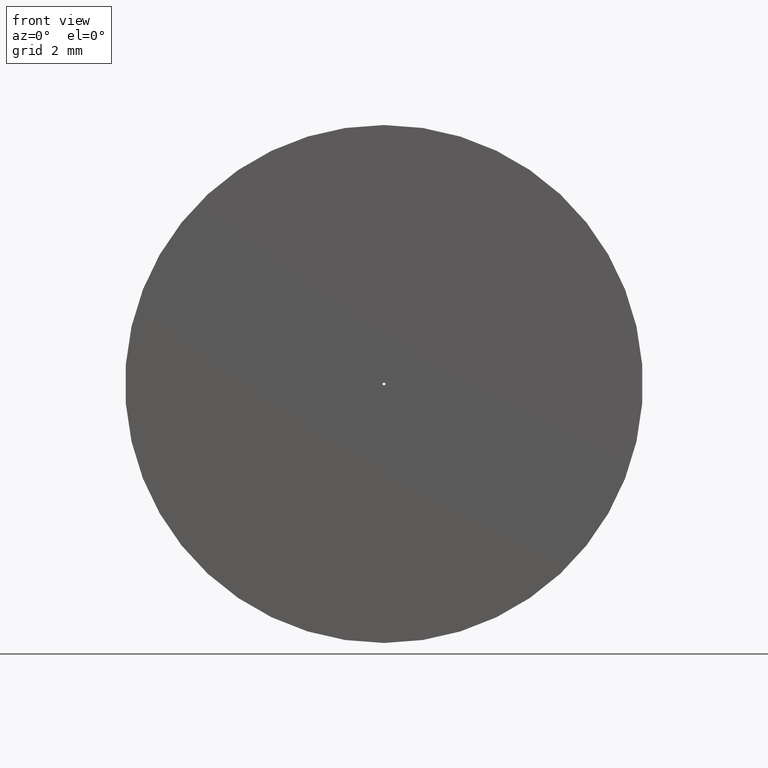
[diagram: clean part render]
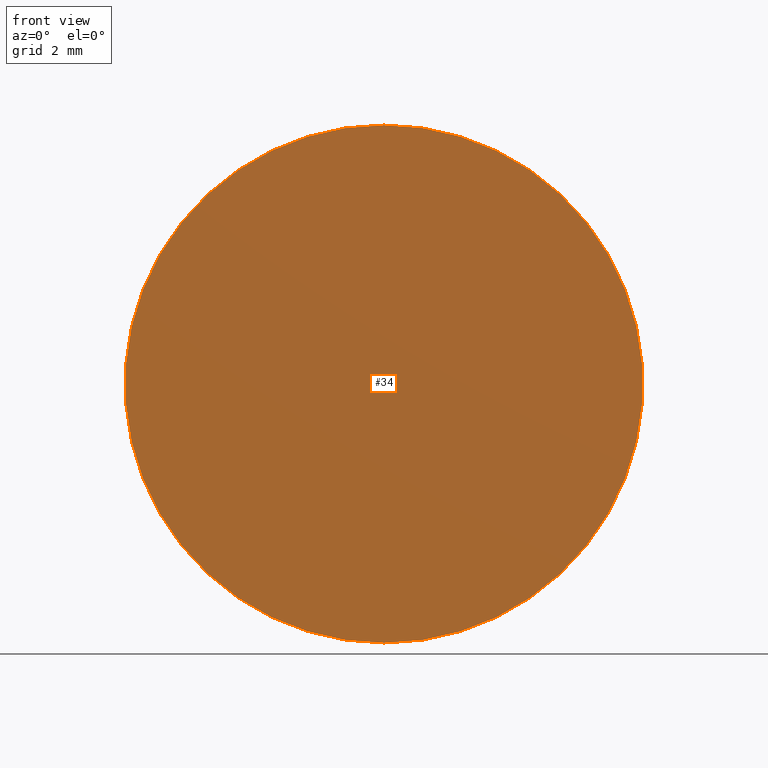
[diagram: same view with one face highlighted and labeled with its STEP entity id]
A machine part, front view. The second image highlights one B-rep face of the part: STEP entity #34.
In plain terms, the highlighted planar face has unit normal (0, 1, 0).
Its self-contained STEP definition (entity closure, byte-faithful):
#6 = CIRCLE ( 'NONE', #71, 0.02500000000000000139 ) ;
#7 = CARTESIAN_POINT ( 'NONE',  ( 3.061616997868383172E-18, 0.000000000000000000, 0.02500000000000000139 ) ) ;
#9 = VERTEX_POINT ( 'NONE', #154 ) ;
#11 = AXIS2_PLACEMENT_3D ( 'NONE', #84, #220, #218 ) ;
#34 = ADVANCED_FACE ( 'NONE', ( #199, #131 ), #58, .F. ) ;
#43 = CIRCLE ( 'NONE', #11, 4.750000000000000000 ) ;
#46 = AXIS2_PLACEMENT_3D ( 'NONE', #99, #245, #117 ) ;
#52 = EDGE_CURVE ( 'NONE', #116, #9, #219, .T. ) ;
#58 = PLANE ( 'NONE',  #46 ) ;
#62 = DIRECTION ( 'NONE',  ( 0.000000000000000000, 1.000000000000000000, 0.000000000000000000 ) ) ;
#70 = ORIENTED_EDGE ( 'NONE', *, *, #236, .F. ) ;
#71 = AXIS2_PLACEMENT_3D ( 'NONE', #201, #216, #181 ) ;
#73 = AXIS2_PLACEMENT_3D ( 'NONE', #74, #150, #152 ) ;
#74 = CARTESIAN_POINT ( 'NONE',  ( 0.000000000000000000, 0.000000000000000000, 0.000000000000000000 ) ) ;
#77 = VERTEX_POINT ( 'NONE', #196 ) ;
#81 = CARTESIAN_POINT ( 'NONE',  ( 5.817072295949927426E-16, 0.000000000000000000, 4.750000000000000000 ) ) ;
#84 = CARTESIAN_POINT ( 'NONE',  ( 0.000000000000000000, 0.000000000000000000, 0.000000000000000000 ) ) ;
#99 = CARTESIAN_POINT ( 'NONE',  ( 0.000000000000000000, 0.000000000000000000, 0.000000000000000000 ) ) ;
#103 = CARTESIAN_POINT ( 'NONE',  ( 0.000000000000000000, 0.000000000000000000, 0.000000000000000000 ) ) ;
#105 = AXIS2_PLACEMENT_3D ( 'NONE', #103, #62, #183 ) ;
#112 = EDGE_LOOP ( 'NONE', ( #205, #114 ) ) ;
#114 = ORIENTED_EDGE ( 'NONE', *, *, #52, .T. ) ;
#116 = VERTEX_POINT ( 'NONE', #7 ) ;
#117 = DIRECTION ( 'NONE',  ( 0.000000000000000000, -0.000000000000000000, 1.000000000000000000 ) ) ;
#131 = FACE_BOUND ( 'NONE', #112, .T. ) ;
#150 = DIRECTION ( 'NONE',  ( 0.000000000000000000, 1.000000000000000000, 0.000000000000000000 ) ) ;
#151 = EDGE_CURVE ( 'NONE', #77, #213, #180, .T. ) ;
#152 = DIRECTION ( 'NONE',  ( 0.000000000000000000, 0.000000000000000000, 1.000000000000000000 ) ) ;
#154 = CARTESIAN_POINT ( 'NONE',  ( 0.000000000000000000, 0.000000000000000000, -0.02500000000000000139 ) ) ;
#168 = ORIENTED_EDGE ( 'NONE', *, *, #151, .F. ) ;
#180 = CIRCLE ( 'NONE', #105, 4.750000000000000000 ) ;
#181 = DIRECTION ( 'NONE',  ( 0.000000000000000000, 0.000000000000000000, 1.000000000000000000 ) ) ;
#182 = EDGE_CURVE ( 'NONE', #9, #116, #6, .T. ) ;
#183 = DIRECTION ( 'NONE',  ( 0.000000000000000000, 0.000000000000000000, 1.000000000000000000 ) ) ;
#190 = EDGE_LOOP ( 'NONE', ( #168, #70 ) ) ;
#196 = CARTESIAN_POINT ( 'NONE',  ( 0.000000000000000000, 0.000000000000000000, -4.750000000000000000 ) ) ;
#199 = FACE_OUTER_BOUND ( 'NONE', #190, .T. ) ;
#201 = CARTESIAN_POINT ( 'NONE',  ( 0.000000000000000000, 0.000000000000000000, 0.000000000000000000 ) ) ;
#205 = ORIENTED_EDGE ( 'NONE', *, *, #182, .T. ) ;
#213 = VERTEX_POINT ( 'NONE', #81 ) ;
#216 = DIRECTION ( 'NONE',  ( 0.000000000000000000, 1.000000000000000000, 0.000000000000000000 ) ) ;
#218 = DIRECTION ( 'NONE',  ( 0.000000000000000000, 0.000000000000000000, 1.000000000000000000 ) ) ;
#219 = CIRCLE ( 'NONE', #73, 0.02500000000000000139 ) ;
#220 = DIRECTION ( 'NONE',  ( 0.000000000000000000, 1.000000000000000000, 0.000000000000000000 ) ) ;
#236 = EDGE_CURVE ( 'NONE', #213, #77, #43, .T. ) ;
#245 = DIRECTION ( 'NONE',  ( 0.000000000000000000, 1.000000000000000000, 0.000000000000000000 ) ) ;